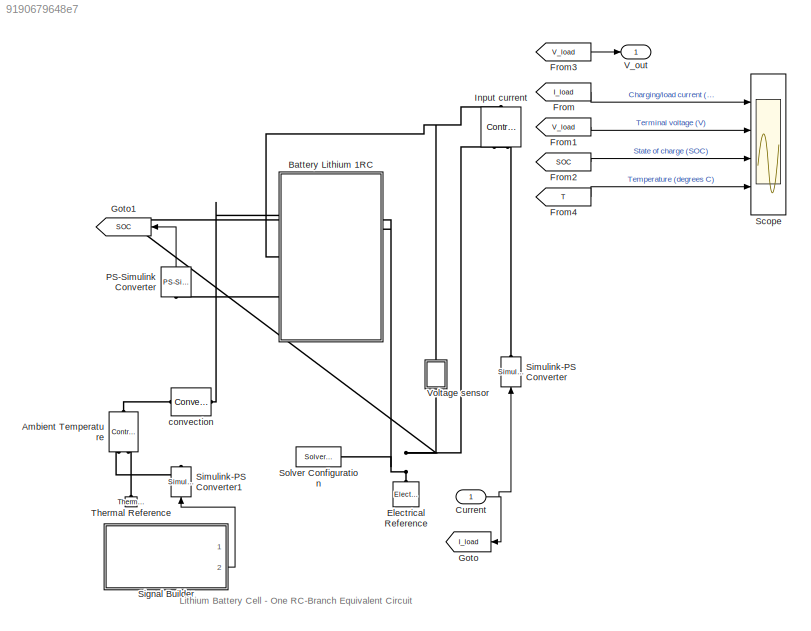
MODEL slx_9190679648e7
KIND model
CONFIG AbsTol = auto
CONFIG EnableMultiTasking = on
CONFIG FixedStep = auto
CONFIG MaxStep = 60
CONFIG MinStep = auto
CONFIG PreLoadFcn = ssc_lithium_cell_1RC_ini
CONFIG RelTol = 1e-3
CONFIG SampleTimeConstraint = Unconstrained
CONFIG Solver = ode15s
CONFIG SolverName = ode15s
CONFIG StartTime = 0.0
CONFIG StopTime = 40000
BLOCK [Reference] Ambient Temperature  REF=fl_lib/Thermal/Thermal Sources/Controlled
Temperature Source
  Ports = [0, 0, 0, 0, 0, 1, 2]
  SourceBlock = fl_lib/Thermal/Thermal Sources/Controlled\nTemperature Source
  SourceProductBaseCode = SS
  SourceProductName = Simscape
  SourceType = Controlled\nTemperature Source
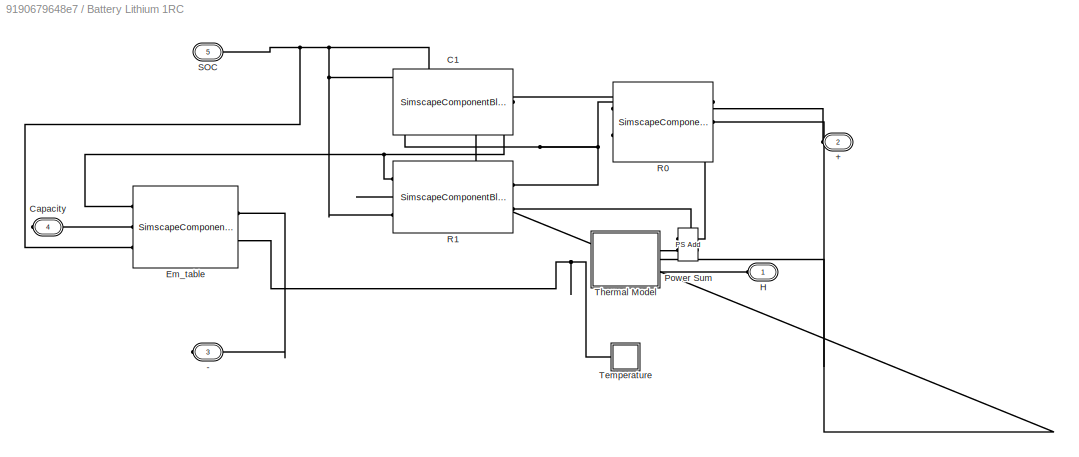
BLOCK [SubSystem] Battery Lithium 1RC
  Ports = [0, 0, 0, 0, 0, 3, 2]
  RequestExecContextInheritance = off
  Variant = off
BLOCK [PMIOPort] Battery Lithium 1RC/+
  Port = 2
  Side = Left
  Tag = PMCPort
BLOCK [PMIOPort] Battery Lithium 1RC/-
  Port = 3
  Side = Right
  Tag = PMCPort
BLOCK [SimscapeComponentBlock] Battery Lithium 1RC/C1
  C_Table = C1_LUT
  C_Table_conf = compiletime
  C_Table_unit = F
  ClassName = C_table
  ComponentPath = C_table
  ComponentVariantNames = C_table
  ComponentVariants = C_table
  CopyFcn = simscape.engine.sli.internal.componentblockcallback(gcbh,'COPY')
  MaskDisplay = disp('Simscape\n\n\n')\ndisp('\n\n\nC_table');\ncolor('red');\nport_label('LConn', 3,'SOC');\nport_label('LConn', 2,'T');\nport_label('RConn', 1,'-');\nport_label('LConn', 1,'+');
  MaskType = C_table
  Ports = [0, 0, 0, 0, 0, 3, 1]
  PreCopyFcn = simscape.engine.sli.internal.componentblockcallback(gcbh,'PRECOPY')
  PreDeleteFcn = simscape.engine.sli.internal.componentblockcallback(gcbh,'PREDELETE')
  SOC_Table = SOC_LUT
  SOC_Table_conf = compiletime
  SOC_Table_unit = 1
  SchemaVersion = 1
  SourceFile = C_table
  Temp_Table = Temperature_LUT
  Temp_Table_conf = compiletime
  Temp_Table_unit = K
  v0 = 0
  v0_conf = compiletime
  v0_unit = V
BLOCK [PMIOPort] Battery Lithium 1RC/Capacity
  Port = 4
  Side = Right
  Tag = PMCPort
BLOCK [SimscapeComponentBlock] Battery Lithium 1RC/Em_table
  C_Table = Capacity_LUT
  C_Table_conf = compiletime
  C_Table_unit = hr*A
  ClassName = Em_table
  ComponentPath = Em_table
  ComponentVariantNames = Em_table
  ComponentVariants = Em_table
  CopyFcn = simscape.engine.sli.internal.componentblockcallback(gcbh,'COPY')
  Em_Table = Em_LUT
  Em_Table_conf = compiletime
  Em_Table_unit = V
  MaskDisplay = disp('Simscape\n\n\n')\ndisp('\n\n\nEm_table');\ncolor('red');\nport_label('LConn', 3,'SOC');\nport_label('LConn', 2,'C');\nport_label('RConn', 2,'T');\nport_label('RConn', 1,'-');\nport_label('LConn', 1,'+');
  MaskType = Em_table
  Ports = [0, 0, 0, 0, 0, 3, 2]
  PreCopyFcn = simscape.engine.sli.internal.componentblockcallback(gcbh,'PRECOPY')
  PreDeleteFcn = simscape.engine.sli.internal.componentblockcallback(gcbh,'PREDELETE')
  Qinit = Qinit
  Qinit_conf = compiletime
  Qinit_unit = hr*A
  SOC_Table = SOC_LUT
  SOC_Table_conf = compiletime
  SOC_Table_unit = 1
  SchemaVersion = 1
  SourceFile = Em_table
  Temp_Table = Temperature_LUT
  Temp_Table_conf = compiletime
  Temp_Table_unit = K
BLOCK [PMIOPort] Battery Lithium 1RC/H
  Port = 1
  Side = Left
  Tag = PMCPort
BLOCK [Reference] Battery Lithium 1RC/Power Sum  REF=fl_lib/Physical Signals/Functions/PS Add
  Ports = [0, 0, 0, 0, 0, 2, 1]
  SourceBlock = fl_lib/Physical Signals/Functions/PS Add
  SourceProductBaseCode = SS
  SourceProductName = Simscape
  SourceType = PS Add
BLOCK [SimscapeComponentBlock] Battery Lithium 1RC/R0
  ClassName = R_table
  ComponentPath = R_table
  ComponentVariantNames = R_table
  ComponentVariants = R_table
  CopyFcn = simscape.engine.sli.internal.componentblockcallback(gcbh,'COPY')
  MaskDisplay = disp('Simscape\n\n\n')\ndisp('\n\n\nR_table');\ncolor('red');\nport_label('RConn', 2,'POW');\nport_label('LConn', 3,'SOC');\nport_label('LConn', 2,'T');\nport_label('RConn', 1,'-');\nport_label('LConn', 1,'+');
  MaskType = R_table
  Ports = [0, 0, 0, 0, 0, 3, 2]
  PreCopyFcn = simscape.engine.sli.internal.componentblockcallback(gcbh,'PRECOPY')
  PreDeleteFcn = simscape.engine.sli.internal.componentblockcallback(gcbh,'PREDELETE')
  R_Table = R0_LUT
  R_Table_conf = compiletime
  R_Table_unit = Ohm
  SOC_Table = SOC_LUT
  SOC_Table_conf = compiletime
  SOC_Table_unit = 1
  SchemaVersion = 1
  SourceFile = R_table
  Temp_Table = Temperature_LUT
  Temp_Table_conf = compiletime
  Temp_Table_unit = K
BLOCK [SimscapeComponentBlock] Battery Lithium 1RC/R1
  ClassName = R_table
  ComponentPath = R_table
  ComponentVariantNames = R_table
  ComponentVariants = R_table
  CopyFcn = simscape.engine.sli.internal.componentblockcallback(gcbh,'COPY')
  MaskDisplay = disp('Simscape\n\n\n')\ndisp('\n\n\nR_table');\ncolor('red');\nport_label('RConn', 2,'POW');\nport_label('LConn', 3,'SOC');\nport_label('LConn', 2,'T');\nport_label('RConn', 1,'-');\nport_label('LConn', 1,'+');
  MaskType = R_table
  Ports = [0, 0, 0, 0, 0, 3, 2]
  PreCopyFcn = simscape.engine.sli.internal.componentblockcallback(gcbh,'PRECOPY')
  PreDeleteFcn = simscape.engine.sli.internal.componentblockcallback(gcbh,'PREDELETE')
  R_Table = R1_LUT
  R_Table_conf = compiletime
  R_Table_unit = Ohm
  SOC_Table = SOC_LUT
  SOC_Table_conf = compiletime
  SOC_Table_unit = 1
  SchemaVersion = 1
  SourceFile = R_table
  Temp_Table = Temperature_LUT
  Temp_Table_conf = compiletime
  Temp_Table_unit = K
BLOCK [PMIOPort] Battery Lithium 1RC/SOC
  Port = 5
  Side = Left
  Tag = PMCPort
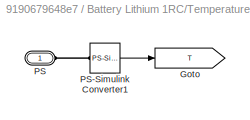
BLOCK [SubSystem] Battery Lithium 1RC/Temperature
  Ports = [0, 0, 0, 0, 0, 1]
  RequestExecContextInheritance = off
  Variant = off
BLOCK [Goto] Battery Lithium 1RC/Temperature/Goto
  GotoTag = T
  TagVisibility = global
BLOCK [PMIOPort] Battery Lithium 1RC/Temperature/PS
  Port = 1
  Side = Left
BLOCK [Reference] Battery Lithium 1RC/Temperature/PS-Simulink Converter1  REF=nesl_utility/PS-Simulink
Converter
  Ports = [0, 1, 0, 0, 0, 1]
  SourceBlock = nesl_utility/PS-Simulink\nConverter
  SourceProductBaseCode = SS
  SourceProductName = Simscape
  SourceType = PS-Simulink\nConverter
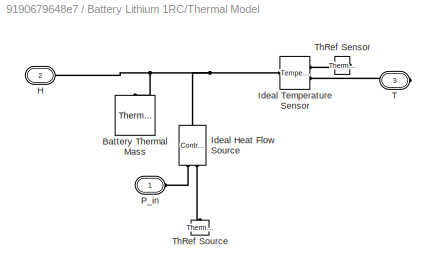
BLOCK [SubSystem] Battery Lithium 1RC/Thermal Model
  Ports = [0, 0, 0, 0, 0, 2, 1]
  RequestExecContextInheritance = off
  Variant = off
BLOCK [Reference] Battery Lithium 1RC/Thermal Model/Battery Thermal Mass  REF=fl_lib/Thermal/Thermal Elements/Thermal Mass
  Ports = [0, 0, 0, 0, 0, 1]
  SourceBlock = fl_lib/Thermal/Thermal Elements/Thermal Mass
  SourceProductBaseCode = SS
  SourceProductName = Simscape
  SourceType = Thermal Mass
BLOCK [PMIOPort] Battery Lithium 1RC/Thermal Model/H
  Port = 2
  Side = Left
  Tag = PMCPort
BLOCK [Reference] Battery Lithium 1RC/Thermal Model/Ideal Heat Flow Source  REF=fl_lib/Thermal/Thermal Sources/Controlled Heat Flow
Rate Source
  Ports = [0, 0, 0, 0, 0, 1, 2]
  SourceBlock = fl_lib/Thermal/Thermal Sources/Controlled Heat Flow\nRate Source
  SourceProductBaseCode = SS
  SourceProductName = Simscape
  SourceType = Controlled Heat Flow\nRate Source
BLOCK [Reference] Battery Lithium 1RC/Thermal Model/Ideal Temperature Sensor  REF=fl_lib/Thermal/Thermal Sensors/Temperature Sensor
  Ports = [0, 0, 0, 0, 0, 1, 2]
  SourceBlock = fl_lib/Thermal/Thermal Sensors/Temperature Sensor
  SourceProductBaseCode = SS
  SourceProductName = Simscape
  SourceType = Temperature Sensor
BLOCK [PMIOPort] Battery Lithium 1RC/Thermal Model/P_in
  Port = 1
  Side = Left
  Tag = PMCPort
BLOCK [PMIOPort] Battery Lithium 1RC/Thermal Model/T
  Port = 3
  Side = Right
  Tag = PMCPort
BLOCK [Reference] Battery Lithium 1RC/Thermal Model/ThRef Sensor  REF=fl_lib/Thermal/Thermal Elements/Thermal Reference
  Ports = [0, 0, 0, 0, 0, 1]
  SourceBlock = fl_lib/Thermal/Thermal Elements/Thermal Reference
  SourceProductBaseCode = SS
  SourceProductName = Simscape
  SourceType = Thermal Reference
BLOCK [Reference] Battery Lithium 1RC/Thermal Model/ThRef Source  REF=fl_lib/Thermal/Thermal Elements/Thermal Reference
  Ports = [0, 0, 0, 0, 0, 1]
  SourceBlock = fl_lib/Thermal/Thermal Elements/Thermal Reference
  SourceProductBaseCode = SS
  SourceProductName = Simscape
  SourceType = Thermal Reference
BLOCK [Inport] Current
  IconDisplay = Port number
BLOCK [Reference] Electrical Reference  REF=fl_lib/Electrical/Electrical Elements/Electrical Reference
  Ports = [0, 0, 0, 0, 0, 1]
  SourceBlock = fl_lib/Electrical/Electrical Elements/Electrical Reference
  SourceProductBaseCode = SS
  SourceProductName = Simscape
  SourceType = Electrical Reference
BLOCK [From] From
  GotoTag = I_load
  TagVisibility = global
BLOCK [From] From1
  GotoTag = V_load
  TagVisibility = global
BLOCK [From] From2
  GotoTag = SOC
BLOCK [From] From3
  GotoTag = V_load
  TagVisibility = global
BLOCK [From] From4
  GotoTag = T
  TagVisibility = global
BLOCK [Goto] Goto
  GotoTag = I_load
  TagVisibility = global
BLOCK [Goto] Goto1
  GotoTag = SOC
BLOCK [Reference] Input current  REF=fl_lib/Electrical/Electrical Sources/Controlled Current
Source
  Ports = [0, 0, 0, 0, 0, 1, 2]
  SourceBlock = fl_lib/Electrical/Electrical Sources/Controlled Current\nSource
  SourceProductBaseCode = SS
  SourceProductName = Simscape
  SourceType = Controlled Current\nSource
BLOCK [Reference] PS-Simulink Converter  REF=nesl_utility/PS-Simulink
Converter
  Ports = [0, 1, 0, 0, 0, 1]
  SourceBlock = nesl_utility/PS-Simulink\nConverter
  SourceProductBaseCode = SS
  SourceProductName = Simscape
  SourceType = PS-Simulink\nConverter
BLOCK [Scope] Scope
  NumInputPorts = 4
  Ports = [4]
  ScopeSpecificationString = Simulink.scopes.TimeScopeBlockCfg('CurrentConfiguration', extmgr.ConfigurationSet(extmgr.Configuration('Core','General UI',true),extmgr.Configuration('Core','Source UI',true),extmgr.Configuration('Sources','WiredSimulink',true,'DataLoggingSaveFormat','StructureWithTime','DataLoggingDecimation','1','DataLoggingDecimateData',true),extmgr.Configuration('Visuals','Time Domain',true,'SerializedDisplays...<+3823ch>
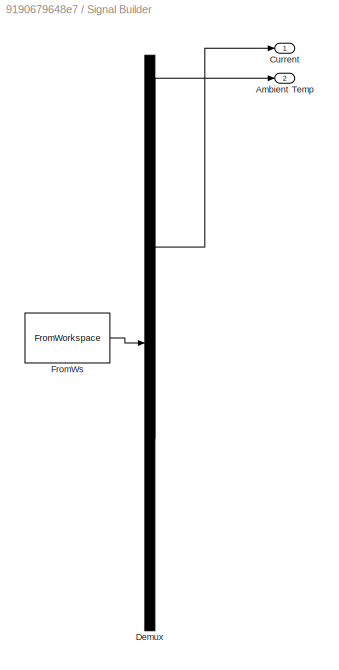
BLOCK [SubSystem] Signal Builder
  ClipboardFcn = sigbuilder_block('clipboard');
  CloseFcn = sigbuilder_block('close');
  ContinueFcn = sigbuilder_block('continue');
  CopyFcn = sigbuilder_block('copy');
  DeleteFcn = sigbuilder_block('delete');
  LoadFcn = sigbuilder_block('load');
  MaskHideContents = on
  ModelCloseFcn = sigbuilder_block('modelClose');
  NameChangeFcn = sigbuilder_block('namechange');
  OpenFcn = sigbuilder_block('open',[0 50 1680 904 ]);
  PauseFcn = sigbuilder_block('pause');
  Ports = [0, 2]
  PreSaveFcn = sigbuilder_block('preSave');
  RequestExecContextInheritance = off
  StartFcn = sigbuilder_block('start');
  StopFcn = sigbuilder_block('stop');
  Tag = STV Subsys
  Variant = off
BLOCK [Outport] Signal Builder/Ambient Temp
  IconDisplay = Port number
  Port = 2
  Tag = STV Outport
BLOCK [Outport] Signal Builder/Current
  IconDisplay = Port number
BLOCK [Demux] Signal Builder/Demux
  Outputs = 2
  Ports = [1, 2]
  Tag = STV Demux
BLOCK [FromWorkspace] Signal Builder/FromWs
  SampleTime = 0
  Tag = STV FromWs
  VariableName = tuvar
  ZeroCross = on
BLOCK [Reference] Simulink-PS Converter  REF=nesl_utility/Simulink-PS
Converter
  Ports = [1, 0, 0, 0, 0, 0, 1]
  SourceBlock = nesl_utility/Simulink-PS\nConverter
  SourceProductBaseCode = SS
  SourceProductName = Simscape
  SourceType = Simulink-PS\nConverter
BLOCK [Reference] Simulink-PS Converter1  REF=nesl_utility/Simulink-PS
Converter
  Ports = [1, 0, 0, 0, 0, 0, 1]
  SourceBlock = nesl_utility/Simulink-PS\nConverter
  SourceProductBaseCode = SS
  SourceProductName = Simscape
  SourceType = Simulink-PS\nConverter
BLOCK [Reference] Solver Configuration  REF=nesl_utility/Solver
Configuration
  Ports = [0, 0, 0, 0, 0, 0, 1]
  SourceBlock = nesl_utility/Solver\nConfiguration
  SourceProductBaseCode = SS
  SourceProductName = Simscape
  SourceType = Solver\nConfiguration
BLOCK [Reference] Thermal Reference  REF=fl_lib/Thermal/Thermal Elements/Thermal Reference
  Ports = [0, 0, 0, 0, 0, 1]
  SourceBlock = fl_lib/Thermal/Thermal Elements/Thermal Reference
  SourceProductBaseCode = SS
  SourceProductName = Simscape
  SourceType = Thermal Reference
BLOCK [Outport] V_out 
  IconDisplay = Port number
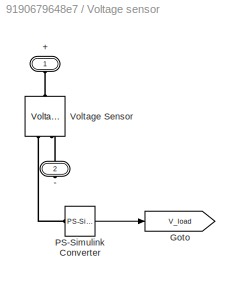
BLOCK [SubSystem] Voltage sensor
  Ports = [0, 0, 0, 0, 0, 1, 1]
  RequestExecContextInheritance = off
  Variant = off
BLOCK [PMIOPort] Voltage sensor/+
  Port = 1
  Side = Left
BLOCK [PMIOPort] Voltage sensor/-
  Port = 2
  Side = Right
BLOCK [Goto] Voltage sensor/Goto
  GotoTag = V_load
  TagVisibility = global
BLOCK [Reference] Voltage sensor/PS-Simulink Converter  REF=nesl_utility/PS-Simulink
Converter
  Ports = [0, 1, 0, 0, 0, 1]
  SourceBlock = nesl_utility/PS-Simulink\nConverter
  SourceProductBaseCode = SS
  SourceProductName = Simscape
  SourceType = PS-Simulink\nConverter
BLOCK [Reference] Voltage sensor/Voltage Sensor  REF=fl_lib/Electrical/Electrical Sensors/Voltage Sensor
  Ports = [0, 0, 0, 0, 0, 1, 2]
  SourceBlock = fl_lib/Electrical/Electrical Sensors/Voltage Sensor
  SourceProductBaseCode = SS
  SourceProductName = Simscape
  SourceType = Voltage Sensor
BLOCK [Reference] convection  REF=fl_lib/Thermal/Thermal Elements/Convective Heat
Transfer
  Ports = [0, 0, 0, 0, 0, 1, 1]
  SourceBlock = fl_lib/Thermal/Thermal Elements/Convective Heat\nTransfer
  SourceProductBaseCode = SS
  SourceProductName = Simscape
  SourceType = Convective Heat\nTransfer
ANNOTATION (root): Lithium Battery Cell - One RC-Branch Equivalent Circuit
LINE Battery Lithium 1RC/Temperature/PS-Simulink Converter1:1 -> Battery Lithium 1RC/Temperature/Goto:1
NET Current:1 -> Goto:1, Simulink-PS Converter:1
LINE From1:1 -> Scope:2
LINE From2:1 -> Scope:3
LINE From3:1 -> V_out :1
LINE From4:1 -> Scope:4
LINE From:1 -> Scope:1
LINE PS-Simulink Converter:1 -> Goto1:1
LINE Signal Builder:2 -> Simulink-PS Converter1:1
LINE Voltage sensor/PS-Simulink Converter:1 -> Voltage sensor/Goto:1
PLINE Ambient Temperature:LConn1 -- convection:LConn1
PLINE Ambient Temperature:RConn1 -- Simulink-PS Converter1:RConn1
PLINE Ambient Temperature:RConn2 -- Thermal Reference:LConn1
PLINE Battery Lithium 1RC/+:RConn1 -- Battery Lithium 1RC/R0:RConn1
PLINE Battery Lithium 1RC/-:RConn1 -- Battery Lithium 1RC/Em_table:RConn1
PNET net1: Battery Lithium 1RC/C1:LConn1 -- Battery Lithium 1RC/Em_table:LConn1 -- Battery Lithium 1RC/R1:LConn1
PNET net2: Battery Lithium 1RC/C1:LConn2 -- Battery Lithium 1RC/Em_table:RConn2 -- Battery Lithium 1RC/R0:LConn2 -- Battery Lithium 1RC/R1:LConn2 -- Battery Lithium 1RC/Temperature:LConn1 -- Battery Lithium 1RC/Thermal Model:RConn1
PNET net3: Battery Lithium 1RC/C1:LConn3 -- Battery Lithium 1RC/Em_table:LConn3 -- Battery Lithium 1RC/R0:LConn3 -- Battery Lithium 1RC/R1:LConn3 -- Battery Lithium 1RC/SOC:RConn1
PNET net4: Battery Lithium 1RC/C1:RConn1 -- Battery Lithium 1RC/R0:LConn1 -- Battery Lithium 1RC/R1:RConn1
PLINE Battery Lithium 1RC/Capacity:RConn1 -- Battery Lithium 1RC/Em_table:LConn2
PLINE Battery Lithium 1RC/H:RConn1 -- Battery Lithium 1RC/Thermal Model:LConn2
PLINE Battery Lithium 1RC/Power Sum:LConn1 -- Battery Lithium 1RC/R0:RConn2
PLINE Battery Lithium 1RC/Power Sum:LConn2 -- Battery Lithium 1RC/R1:RConn2
PLINE Battery Lithium 1RC/Power Sum:RConn1 -- Battery Lithium 1RC/Thermal Model:LConn1
PLINE Battery Lithium 1RC/Temperature/PS-Simulink Converter1:LConn1 -- Battery Lithium 1RC/Temperature/PS:RConn1
PNET net5: Battery Lithium 1RC/Thermal Model/Battery Thermal Mass:LConn1 -- Battery Lithium 1RC/Thermal Model/H:RConn1 -- Battery Lithium 1RC/Thermal Model/Ideal Heat Flow Source:LConn1 -- Battery Lithium 1RC/Thermal Model/Ideal Temperature Sensor:LConn1
PLINE Battery Lithium 1RC/Thermal Model/Ideal Heat Flow Source:RConn1 -- Battery Lithium 1RC/Thermal Model/P_in:RConn1
PLINE Battery Lithium 1RC/Thermal Model/Ideal Heat Flow Source:RConn2 -- Battery Lithium 1RC/Thermal Model/ThRef Source:LConn1
PLINE Battery Lithium 1RC/Thermal Model/Ideal Temperature Sensor:RConn1 -- Battery Lithium 1RC/Thermal Model/ThRef Sensor:LConn1
PLINE Battery Lithium 1RC/Thermal Model/Ideal Temperature Sensor:RConn2 -- Battery Lithium 1RC/Thermal Model/T:RConn1
PLINE Battery Lithium 1RC:LConn1 -- convection:RConn1
PNET net6: Battery Lithium 1RC:LConn2 -- Input current:LConn1 -- Voltage sensor:LConn1
PLINE Battery Lithium 1RC:LConn3 -- PS-Simulink Converter:LConn1
PNET net7: Battery Lithium 1RC:RConn1 -- Electrical Reference:LConn1 -- Input current:RConn2 -- Solver Configuration:RConn1 -- Voltage sensor:RConn1
PLINE Input current:RConn1 -- Simulink-PS Converter:RConn1
PLINE Voltage sensor/+:RConn1 -- Voltage sensor/Voltage Sensor:LConn1
PLINE Voltage sensor/-:RConn1 -- Voltage sensor/Voltage Sensor:RConn2
PLINE Voltage sensor/PS-Simulink Converter:LConn1 -- Voltage sensor/Voltage Sensor:RConn1
note: NET lines group one-source signal fan-out (src -> all destinations, sorted); 1:1 wires keep LINE; PNET lines group multi-terminal physical nets as a canonical sorted terminal list (undirected conserving connections); 2-terminal nets keep the pairwise PLINE form
